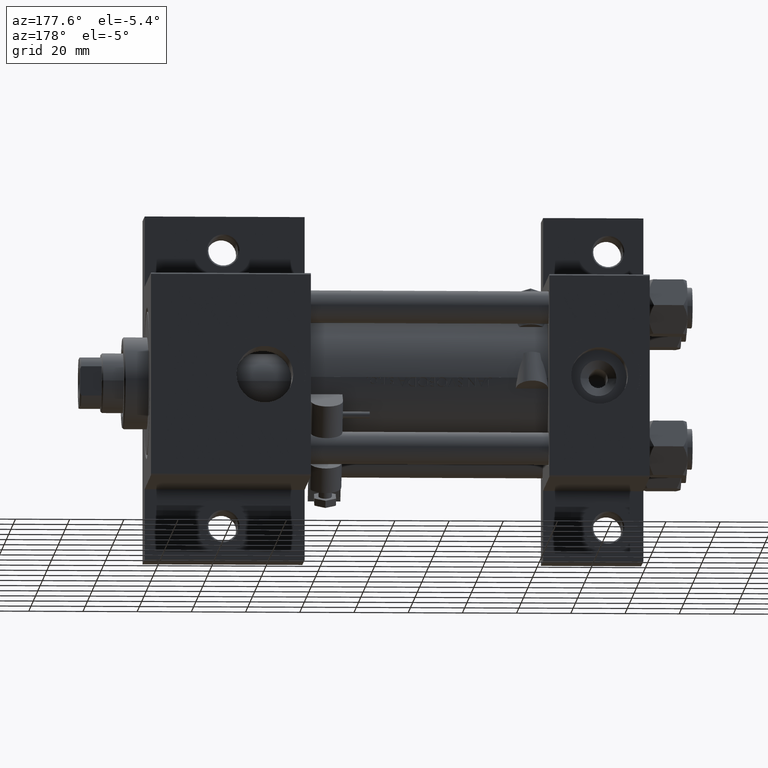
[diagram: clean part render]
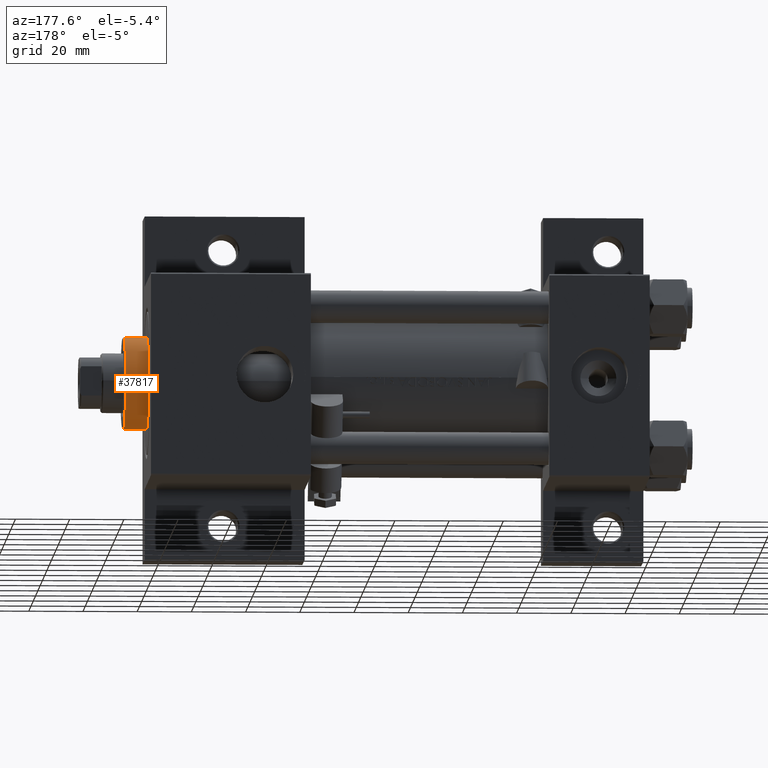
[diagram: same view with one face highlighted and labeled with its STEP entity id]
A machine part, auxiliary view. The second image highlights one B-rep face of the part: STEP entity #37817.
In plain terms, the highlighted cylindrical surface (partial cylindrical patch) has radius 17 mm, axis along (-1, -0, 0).
Its self-contained STEP definition (entity closure, byte-faithful):
#409 = ORIENTED_EDGE ( 'NONE', *, *, #13697, .T. ) ;
#1288 = CARTESIAN_POINT ( 'NONE',  ( -17.00000000000000000, 0.000000000000000000, 37.19999999999999574 ) ) ;
#3324 = VERTEX_POINT ( 'NONE', #46845 ) ;
#5698 = VERTEX_POINT ( 'NONE', #33462 ) ;
#6214 = FACE_OUTER_BOUND ( 'NONE', #20393, .T. ) ;
#10840 = LINE ( 'NONE', #25844, #45105 ) ;
#11315 = CIRCLE ( 'NONE', #17594, 17.00000000000000000 ) ;
#13208 = LINE ( 'NONE', #20118, #45966 ) ;
#13341 = DIRECTION ( 'NONE',  ( -1.000000000000000000, 0.000000000000000000, 0.000000000000000000 ) ) ;
#13588 = DIRECTION ( 'NONE',  ( -0.000000000000000000, -0.000000000000000000, -1.000000000000000000 ) ) ;
#13697 = EDGE_CURVE ( 'NONE', #3324, #5698, #11315, .T. ) ;
#13763 = EDGE_CURVE ( 'NONE', #42680, #3324, #10840, .T. ) ;
#14280 = CARTESIAN_POINT ( 'NONE',  ( 0.000000000000000000, 0.000000000000000000, 28.69999999999999929 ) ) ;
#16830 = AXIS2_PLACEMENT_3D ( 'NONE', #44146, #48054, #28167 ) ;
#17415 = EDGE_CURVE ( 'NONE', #28088, #5698, #13208, .T. ) ;
#17594 = AXIS2_PLACEMENT_3D ( 'NONE', #14280, #28805, #21665 ) ;
#20118 = CARTESIAN_POINT ( 'NONE',  ( -17.00000000000000000, 0.000000000000000000, 37.69999999999999574 ) ) ;
#20393 = EDGE_LOOP ( 'NONE', ( #20771, #38982, #409, #20821 ) ) ;
#20486 = CARTESIAN_POINT ( 'NONE',  ( 0.000000000000000000, 0.000000000000000000, 37.69999999999999574 ) ) ;
#20771 = ORIENTED_EDGE ( 'NONE', *, *, #33615, .T. ) ;
#20821 = ORIENTED_EDGE ( 'NONE', *, *, #17415, .F. ) ;
#21665 = DIRECTION ( 'NONE',  ( 1.000000000000000000, 0.000000000000000000, 0.000000000000000000 ) ) ;
#25844 = CARTESIAN_POINT ( 'NONE',  ( 17.00000000000000000, 2.081899558550500280E-15, 37.69999999999999574 ) ) ;
#28088 = VERTEX_POINT ( 'NONE', #1288 ) ;
#28167 = DIRECTION ( 'NONE',  ( 1.000000000000000000, 0.000000000000000000, 0.000000000000000000 ) ) ;
#28224 = DIRECTION ( 'NONE',  ( -0.000000000000000000, -0.000000000000000000, -1.000000000000000000 ) ) ;
#28360 = CYLINDRICAL_SURFACE ( 'NONE', #33342, 17.00000000000000000 ) ;
#28805 = DIRECTION ( 'NONE',  ( 0.000000000000000000, 0.000000000000000000, 1.000000000000000000 ) ) ;
#29539 = CARTESIAN_POINT ( 'NONE',  ( 17.00000000000000000, 2.081899558550500280E-15, 37.19999999999999574 ) ) ;
#33342 = AXIS2_PLACEMENT_3D ( 'NONE', #20486, #13588, #13341 ) ;
#33462 = CARTESIAN_POINT ( 'NONE',  ( -17.00000000000000000, 0.000000000000000000, 28.69999999999999929 ) ) ;
#33615 = EDGE_CURVE ( 'NONE', #28088, #42680, #44339, .T. ) ;
#37817 = ADVANCED_FACE ( 'NONE', ( #6214 ), #28360, .T. ) ;
#38982 = ORIENTED_EDGE ( 'NONE', *, *, #13763, .T. ) ;
#40849 = DIRECTION ( 'NONE',  ( -0.000000000000000000, -0.000000000000000000, -1.000000000000000000 ) ) ;
#42680 = VERTEX_POINT ( 'NONE', #29539 ) ;
#44146 = CARTESIAN_POINT ( 'NONE',  ( 0.000000000000000000, 0.000000000000000000, 37.19999999999999574 ) ) ;
#44339 = CIRCLE ( 'NONE', #16830, 17.00000000000000000 ) ;
#45105 = VECTOR ( 'NONE', #40849, 1000.000000000000000 ) ;
#45966 = VECTOR ( 'NONE', #28224, 1000.000000000000000 ) ;
#46845 = CARTESIAN_POINT ( 'NONE',  ( 17.00000000000000000, 2.081899558550500280E-15, 28.69999999999999929 ) ) ;
#48054 = DIRECTION ( 'NONE',  ( 0.000000000000000000, 0.000000000000000000, -1.000000000000000000 ) ) ;